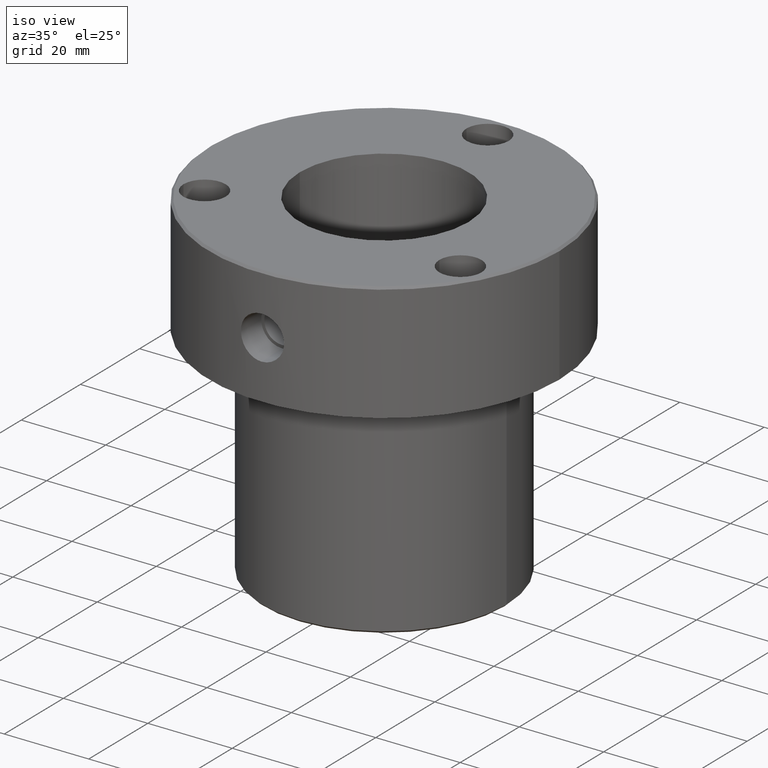
[diagram: clean part render]
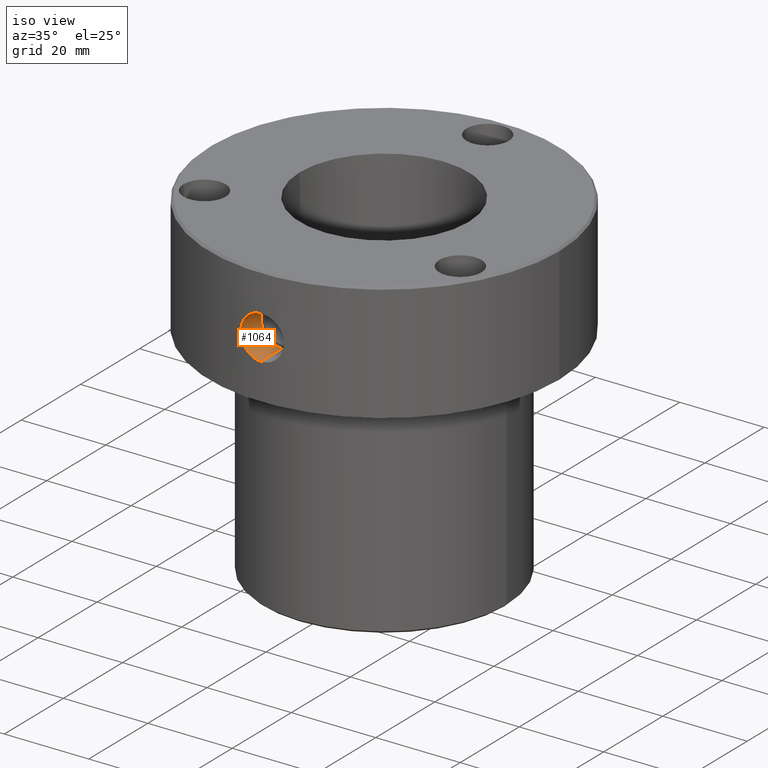
[diagram: same view with one face highlighted and labeled with its STEP entity id]
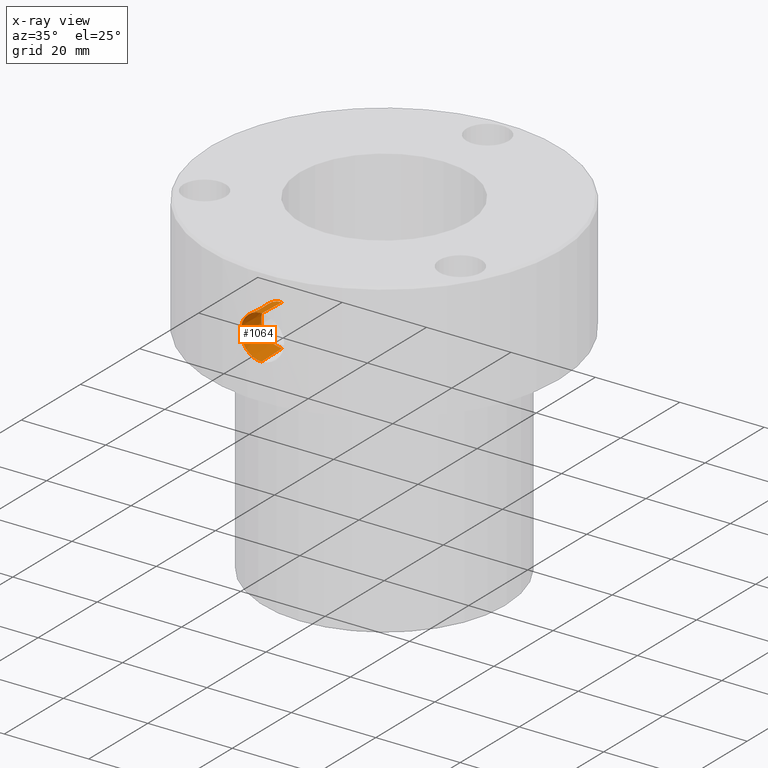
[diagram: x-ray of the same camera — body ghosted, the highlighted face saturated]
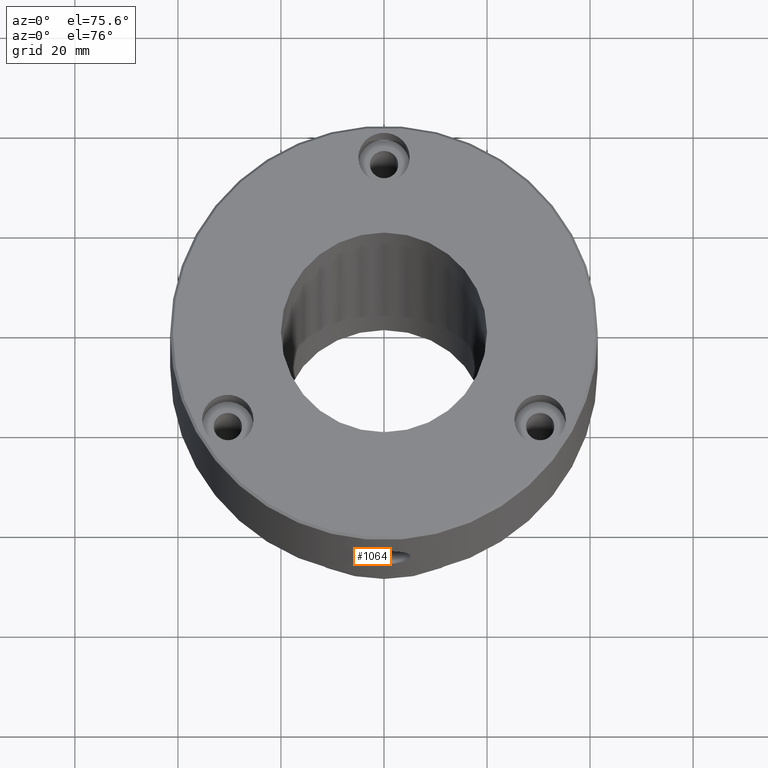
[diagram: same view with one face highlighted and labeled with its STEP entity id]
A machine part, iso view. The second image highlights one B-rep face of the part: STEP entity #1064.
The next image is the same camera in x-ray: the body ghosted, the highlighted face saturated — about 0% of this face is hidden behind the body in this view.
A second angle (auxiliary view) of the same face is appended — the face is thin or edge-on in the first view.
In plain terms, the highlighted conical surface has half-angle 1.715 deg.
Its self-contained STEP definition (entity closure, byte-faithful):
#17 = DIRECTION ( 'NONE',  ( -0.000000000000000000, -1.000000000000000000, -0.000000000000000000 ) ) ;
#25 = CARTESIAN_POINT ( 'NONE',  ( 0.000000000000000000, -41.50000000000000000, -19.39337300000000397 ) ) ;
#45 = CARTESIAN_POINT ( 'NONE',  ( -4.968702008353958810, -41.20153389003530719, -12.91289993887919962 ) ) ;
#68 = CIRCLE ( 'NONE', #780, 4.936178932939922603 ) ;
#80 = CARTESIAN_POINT ( 'NONE',  ( -4.457652184850283916, -41.26032858553116256, -16.82367133916453028 ) ) ;
#96 = CARTESIAN_POINT ( 'NONE',  ( -5.133944861027605278, -41.18121671560616903, -14.58322601611474667 ) ) ;
#112 = VECTOR ( 'NONE', #501, 1000.000000000000227 ) ;
#123 = FACE_OUTER_BOUND ( 'NONE', #473, .T. ) ;
#140 = DIRECTION ( 'NONE',  ( -0.000000000000000000, -1.000000000000000000, -0.000000000000000000 ) ) ;
#154 = CARTESIAN_POINT ( 'NONE',  ( 6.172776487677910551E-16, -34.58000000000000540, -9.313821067060082726 ) ) ;
#162 = CARTESIAN_POINT ( 'NONE',  ( -0.6766514500765288265, -41.49578757569125997, -9.140436106059212307 ) ) ;
#165 = VERTEX_POINT ( 'NONE', #521 ) ;
#167 = CARTESIAN_POINT ( 'NONE',  ( -0.3358848179217935881, -41.50000000000000000, -9.106627000000003136 ) ) ;
#172 = CARTESIAN_POINT ( 'NONE',  ( -3.870759735923740230, -41.31978293821809700, -10.85441625085839945 ) ) ;
#183 = CARTESIAN_POINT ( 'NONE',  ( -3.391550504605600924, -41.36187607212048079, -18.12598980435603124 ) ) ;
#188 = CARTESIAN_POINT ( 'NONE',  ( -5.125564061013234252, -41.18226403669493152, -13.91293155588416219 ) ) ;
#220 = CARTESIAN_POINT ( 'NONE',  ( -0.6750926142630175875, -41.49582201622714450, -19.35984715612938700 ) ) ;
#272 = CARTESIAN_POINT ( 'NONE',  ( -5.092463226589477365, -41.18637027485478797, -13.57687092004547402 ) ) ;
#283 = CARTESIAN_POINT ( 'NONE',  ( -4.617200543455427741, -41.24255031704900887, -16.52343980841959947 ) ) ;
#289 = CARTESIAN_POINT ( 'NONE',  ( -5.133770054922493387, -41.18123850768246541, -14.08069826201581343 ) ) ;
#340 = CARTESIAN_POINT ( 'NONE',  ( -3.394086074553285037, -41.36166610175697400, -10.37626308858978241 ) ) ;
#347 = VERTEX_POINT ( 'NONE', #580 ) ;
#350 = CARTESIAN_POINT ( 'NONE',  ( -1.654948281226035656, -41.46816428171756996, -9.369456122873327075 ) ) ;
#357 = CARTESIAN_POINT ( 'NONE',  ( -1.334466502813387301, -41.47984381437148471, -9.272069786490492405 ) ) ;
#372 = CARTESIAN_POINT ( 'NONE',  ( -3.132951887491444598, -41.38251185378926778, -18.33837002926375703 ) ) ;
#381 = CARTESIAN_POINT ( 'NONE',  ( -3.868908882022317641, -41.31995826587137088, -17.64772823622658393 ) ) ;
#388 = CARTESIAN_POINT ( 'NONE',  ( -1.655288949730983727, -41.46813820925184757, -19.13030085942898495 ) ) ;
#412 = ORIENTED_EDGE ( 'NONE', *, *, #542, .T. ) ;
#418 = LINE ( 'NONE', #25, #527 ) ;
#423 = DIRECTION ( 'NONE',  ( 0.000000000000000000, 0.000000000000000000, -1.000000000000000000 ) ) ;
#473 = EDGE_LOOP ( 'NONE', ( #582, #1168, #412, #754 ) ) ;
#485 = CONICAL_SURFACE ( 'NONE', #1088, 5.143372999999999529, 0.02993239667170296756 ) ;
#492 = VERTEX_POINT ( 'NONE', #154 ) ;
#501 = DIRECTION ( 'NONE',  ( 3.665114028111739322E-18, -0.9995520592605567911, 0.02992792722492342017 ) ) ;
#510 = LINE ( 'NONE', #891, #112 ) ;
#516 = CARTESIAN_POINT ( 'NONE',  ( -1.335186249268033754, -41.47982970697925964, -19.22781482291251010 ) ) ;
#521 = CARTESIAN_POINT ( 'NONE',  ( 0.000000000000000000, -34.58000000000000540, -19.18617893293992793 ) ) ;
#527 = VECTOR ( 'NONE', #988, 1000.000000000000227 ) ;
#542 = EDGE_CURVE ( 'NONE', #347, #1017, #877, .T. ) ;
#580 = CARTESIAN_POINT ( 'NONE',  ( 6.298815287416284232E-16, -41.50000000000000000, -9.106627000000006689 ) ) ;
#582 = ORIENTED_EDGE ( 'NONE', *, *, #815, .F. ) ;
#654 = CARTESIAN_POINT ( 'NONE',  ( -4.969954534212426722, -41.20138294554474356, -15.58308990759573476 ) ) ;
#683 = EDGE_CURVE ( 'NONE', #492, #347, #510, .T. ) ;
#713 = CARTESIAN_POINT ( 'NONE',  ( -4.871555449415037486, -41.21328197726079168, -12.59267309540596180 ) ) ;
#735 = CARTESIAN_POINT ( 'NONE',  ( -3.132718741693854003, -41.38252761798424473, -10.16147806440636714 ) ) ;
#739 = CARTESIAN_POINT ( 'NONE',  ( -2.278754979423208038, -41.43856631753568820, -9.628666380064457186 ) ) ;
#753 = CARTESIAN_POINT ( 'NONE',  ( -2.275777960866582905, -41.43871743576949740, -18.87267168938217665 ) ) ;
#754 = ORIENTED_EDGE ( 'NONE', *, *, #1029, .F. ) ;
#780 = AXIS2_PLACEMENT_3D ( 'NONE', #793, #140, #800 ) ;
#793 = CARTESIAN_POINT ( 'NONE',  ( 0.000000000000000000, -34.58000000000000540, -14.25000000000000533 ) ) ;
#800 = DIRECTION ( 'NONE',  ( 0.000000000000000000, 0.000000000000000000, -1.000000000000000000 ) ) ;
#815 = EDGE_CURVE ( 'NONE', #492, #165, #68, .T. ) ;
#833 = CARTESIAN_POINT ( 'NONE',  ( -4.454109271255983771, -41.26070536494628271, -11.67053161493941893 ) ) ;
#854 = CARTESIAN_POINT ( 'NONE',  ( -5.101709454286791789, -41.18527607460710982, -14.91722213312219658 ) ) ;
#877 = B_SPLINE_CURVE_WITH_KNOTS ( 'NONE', 3,
 ( #1207, #167, #162, #357, #350, #739, #920, #735, #340, #172, #1218, #833, #1225, #713, #45, #951, #272, #188, #289, #96, #854, #654, #1039, #283, #80, #1240, #381, #183, #372, #1045, #753, #388, #516, #220, #883, #1156 ),
 .UNSPECIFIED., .F., .F.,
 ( 4, 2, 2, 2, 2, 2, 2, 2, 2, 2, 2, 2, 2, 2, 2, 2, 2, 4 ),
 ( 0.02021362857546973521, 0.02121826824949517992, 0.02222290792352062810, 0.02322754759754607629, 0.02423218727157152447, 0.02523682694559696918, 0.02624146661962241736, 0.02724610629364786554, 0.02774842613066058616, 0.02825074596767330332, 0.02925538564169874109, 0.03026002531572417886, 0.03126466498974961317, 0.03226930466377504747, 0.03327394433780048177, 0.03427858401182591608, 0.03528322368585135732, 0.03628786335987679162 ),
 .UNSPECIFIED. ) ;
#883 = CARTESIAN_POINT ( 'NONE',  ( -0.3350682603603476473, -41.50000000000000000, -19.39337300000000397 ) ) ;
#891 = CARTESIAN_POINT ( 'NONE',  ( 6.298815281270918744E-16, -41.50000000000000000, -9.106627000000006689 ) ) ;
#920 = CARTESIAN_POINT ( 'NONE',  ( -2.577194124947769005, -41.42083520657356388, -9.789080731633461596 ) ) ;
#951 = CARTESIAN_POINT ( 'NONE',  ( -5.067404577820334488, -41.18947085699902289, -13.40828157554759414 ) ) ;
#988 = DIRECTION ( 'NONE',  ( 0.000000000000000000, -0.9995520592605567911, -0.02992792722492342017 ) ) ;
#1017 = VERTEX_POINT ( 'NONE', #1172 ) ;
#1029 = EDGE_CURVE ( 'NONE', #165, #1017, #418, .T. ) ;
#1039 = CARTESIAN_POINT ( 'NONE',  ( -4.872401314849809317, -41.21317996636337000, -15.90461268624623159 ) ) ;
#1045 = CARTESIAN_POINT ( 'NONE',  ( -2.576868211289954136, -41.42085736775601390, -18.71113336113497283 ) ) ;
#1064 = ADVANCED_FACE ( 'NONE', ( #123 ), #485, .F. ) ;
#1088 = AXIS2_PLACEMENT_3D ( 'NONE', #1155, #17, #423 ) ;
#1155 = CARTESIAN_POINT ( 'NONE',  ( 0.000000000000000000, -41.50000000000000000, -14.25000000000000533 ) ) ;
#1156 = CARTESIAN_POINT ( 'NONE',  ( 2.108101396014697804E-21, -41.50000000000000000, -19.39337300000000397 ) ) ;
#1168 = ORIENTED_EDGE ( 'NONE', *, *, #683, .T. ) ;
#1172 = CARTESIAN_POINT ( 'NONE',  ( 2.108101396014697804E-21, -41.50000000000000000, -19.39337300000000397 ) ) ;
#1207 = CARTESIAN_POINT ( 'NONE',  ( 6.298815287416284232E-16, -41.50000000000000000, -9.106627000000006689 ) ) ;
#1218 = CARTESIAN_POINT ( 'NONE',  ( -4.082477898350872714, -41.29913159889288465, -11.11345080764193227 ) ) ;
#1225 = CARTESIAN_POINT ( 'NONE',  ( -4.615070424327308629, -41.24279074956536562, -11.97206579864487708 ) ) ;
#1240 = CARTESIAN_POINT ( 'NONE',  ( -4.083468521059986145, -41.29903949033938915, -17.38554455033941792 ) ) ;